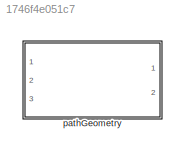
MODEL slx_1746f4e051c7
KIND library
CONFIG AbsTol = auto
CONFIG EnableMultiTasking = off
CONFIG FixedStep = auto
CONFIG MaxStep = auto
CONFIG MinStep = auto
CONFIG RelTol = 1e-3
CONFIG SampleTimeConstraint = Unconstrained
CONFIG Solver = VariableStepAuto
CONFIG SolverName = VariableStepAuto
CONFIG StartTime = 0.0
CONFIG StopTime = 10.0
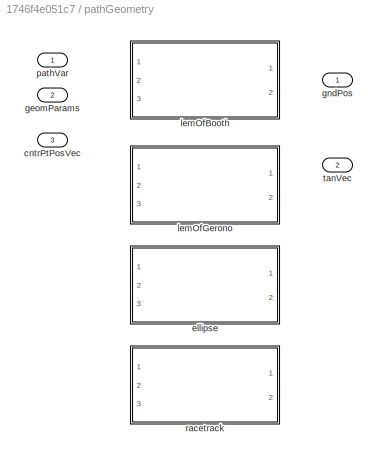
BLOCK [SubSystem] pathGeometry
  InitFcn = initializeVariantsFromBlock(gcb)
  LoadFcn = initializeVariantsFromBlock(gcb)
  Ports = [3, 2]
  RequestExecContextInheritance = off
  StartFcn = initializeVariantsFromBlock(gcb)
  Variant = on
BLOCK [Inport] pathGeometry/cntrPtPosVec
  IconDisplay = Port number
  Port = 3
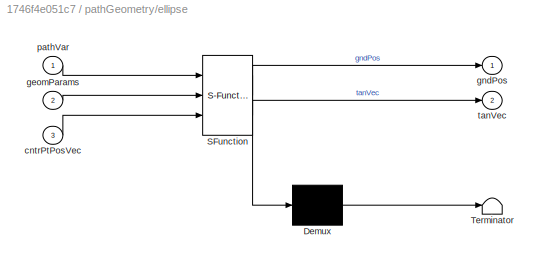
BLOCK [SubSystem] pathGeometry/ellipse
  ErrorFcn = Stateflow.Translate.translate
  PermitHierarchicalResolution = ExplicitOnly
  Ports = [3, 2]
  RequestExecContextInheritance = off
  SFBlockType = MATLAB Function
  TreatAsAtomicUnit = on
  VariantControl = VSS_pathGeometry_ellipse
BLOCK [Demux] pathGeometry/ellipse/ Demux 
  Outputs = 1
  Ports = [1, 1]
BLOCK [S-Function] pathGeometry/ellipse/ SFunction 
  EnableBusSupport = off
  FunctionName = sf_sfun
  PortCounts = [3 3]
  Ports = [3, 3]
  SFcnIsStateOwnerBlock = off
  SFunctionDeploymentMode = off
  Tag = Stateflow S-Function pathGeometry_ul 3
BLOCK [Terminator] pathGeometry/ellipse/ Terminator 
BLOCK [Inport] pathGeometry/ellipse/cntrPtPosVec
  IconDisplay = Port number
  Port = 3
BLOCK [Inport] pathGeometry/ellipse/geomParams
  IconDisplay = Port number
  Port = 2
BLOCK [Outport] pathGeometry/ellipse/gndPos
  IconDisplay = Port number
BLOCK [Inport] pathGeometry/ellipse/pathVar
  IconDisplay = Port number
BLOCK [Outport] pathGeometry/ellipse/tanVec
  IconDisplay = Port number
  Port = 2
BLOCK [Inport] pathGeometry/geomParams
  IconDisplay = Port number
  Port = 2
BLOCK [Outport] pathGeometry/gndPos
  IconDisplay = Port number
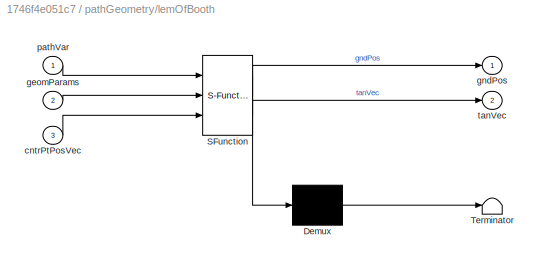
BLOCK [SubSystem] pathGeometry/lemOfBooth
  ErrorFcn = Stateflow.Translate.translate
  PermitHierarchicalResolution = ExplicitOnly
  Ports = [3, 2]
  RequestExecContextInheritance = off
  SFBlockType = MATLAB Function
  TreatAsAtomicUnit = on
  VariantControl = VSS_pathGeometry_lemOfBooth
BLOCK [Demux] pathGeometry/lemOfBooth/ Demux 
  Outputs = 1
  Ports = [1, 1]
BLOCK [S-Function] pathGeometry/lemOfBooth/ SFunction 
  EnableBusSupport = off
  FunctionName = sf_sfun
  PortCounts = [3 3]
  Ports = [3, 3]
  SFcnIsStateOwnerBlock = off
  SFunctionDeploymentMode = off
  Tag = Stateflow S-Function pathGeometry_ul 2
BLOCK [Terminator] pathGeometry/lemOfBooth/ Terminator 
BLOCK [Inport] pathGeometry/lemOfBooth/cntrPtPosVec
  IconDisplay = Port number
  Port = 3
BLOCK [Inport] pathGeometry/lemOfBooth/geomParams
  IconDisplay = Port number
  Port = 2
BLOCK [Outport] pathGeometry/lemOfBooth/gndPos
  IconDisplay = Port number
BLOCK [Inport] pathGeometry/lemOfBooth/pathVar
  IconDisplay = Port number
BLOCK [Outport] pathGeometry/lemOfBooth/tanVec
  IconDisplay = Port number
  Port = 2
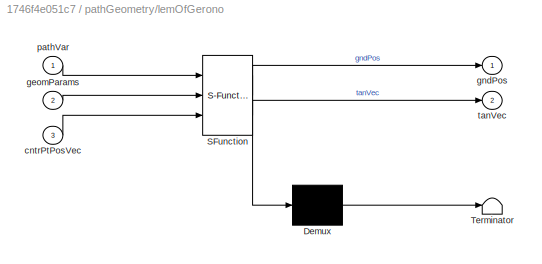
BLOCK [SubSystem] pathGeometry/lemOfGerono
  ErrorFcn = Stateflow.Translate.translate
  PermitHierarchicalResolution = ExplicitOnly
  Ports = [3, 2]
  RequestExecContextInheritance = off
  SFBlockType = MATLAB Function
  TreatAsAtomicUnit = on
  VariantControl = VSS_pathGeometry_lemOfGerono
BLOCK [Demux] pathGeometry/lemOfGerono/ Demux 
  Outputs = 1
  Ports = [1, 1]
BLOCK [S-Function] pathGeometry/lemOfGerono/ SFunction 
  EnableBusSupport = off
  FunctionName = sf_sfun
  PortCounts = [3 3]
  Ports = [3, 3]
  SFcnIsStateOwnerBlock = off
  SFunctionDeploymentMode = off
  Tag = Stateflow S-Function pathGeometry_ul 1
BLOCK [Terminator] pathGeometry/lemOfGerono/ Terminator 
BLOCK [Inport] pathGeometry/lemOfGerono/cntrPtPosVec
  IconDisplay = Port number
  Port = 3
BLOCK [Inport] pathGeometry/lemOfGerono/geomParams
  IconDisplay = Port number
  Port = 2
BLOCK [Outport] pathGeometry/lemOfGerono/gndPos
  IconDisplay = Port number
BLOCK [Inport] pathGeometry/lemOfGerono/pathVar
  IconDisplay = Port number
BLOCK [Outport] pathGeometry/lemOfGerono/tanVec
  IconDisplay = Port number
  Port = 2
BLOCK [Inport] pathGeometry/pathVar
  IconDisplay = Port number
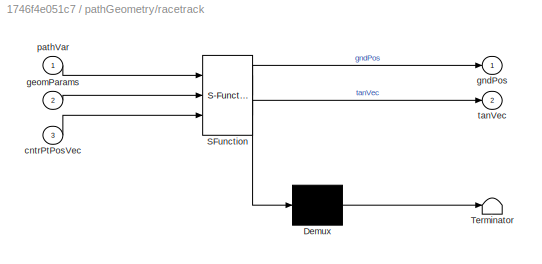
BLOCK [SubSystem] pathGeometry/racetrack
  ErrorFcn = Stateflow.Translate.translate
  PermitHierarchicalResolution = ExplicitOnly
  Ports = [3, 2]
  RequestExecContextInheritance = off
  SFBlockType = MATLAB Function
  TreatAsAtomicUnit = on
  VariantControl = VSS_pathGeometry_racetrack
BLOCK [Demux] pathGeometry/racetrack/ Demux 
  Outputs = 1
  Ports = [1, 1]
BLOCK [S-Function] pathGeometry/racetrack/ SFunction 
  EnableBusSupport = off
  FunctionName = sf_sfun
  PortCounts = [3 3]
  Ports = [3, 3]
  SFcnIsStateOwnerBlock = off
  SFunctionDeploymentMode = off
  Tag = Stateflow S-Function pathGeometry_ul 4
BLOCK [Terminator] pathGeometry/racetrack/ Terminator 
BLOCK [Inport] pathGeometry/racetrack/cntrPtPosVec
  IconDisplay = Port number
  Port = 3
BLOCK [Inport] pathGeometry/racetrack/geomParams
  IconDisplay = Port number
  Port = 2
BLOCK [Outport] pathGeometry/racetrack/gndPos
  IconDisplay = Port number
BLOCK [Inport] pathGeometry/racetrack/pathVar
  IconDisplay = Port number
BLOCK [Outport] pathGeometry/racetrack/tanVec
  IconDisplay = Port number
  Port = 2
BLOCK [Outport] pathGeometry/tanVec
  IconDisplay = Port number
  Port = 2
CHART pathGeometry/lemOfGerono states=1 transitions=1
  STATE_LABEL 'eML_blk_kernel()'
  STATE_LABEL 'SCRIPT:\nfunction [gndPos,tanVec] = fcn(pathVar,geomParams,cntrPtPosVec)\n[gndPos,tanVec] = lemOfGerono(pathVar,geomParams,cntrPtPosVec);\n\n'
CHART pathGeometry/lemOfBooth states=1 transitions=1
  STATE_LABEL 'eML_blk_kernel()'
  STATE_LABEL 'SCRIPT:\nfunction [gndPos,tanVec] = fcn(pathVar,geomParams,cntrPtPosVec)\n[gndPos,tanVec] = lemOfBooth(pathVar,geomParams,cntrPtPosVec);\n\n'
CHART pathGeometry/ellipse states=1 transitions=1
  STATE_LABEL 'eML_blk_kernel()'
  STATE_LABEL 'SCRIPT:\nfunction [gndPos,tanVec] = fcn(pathVar,geomParams,cntrPtPosVec)\n[gndPos,tanVec] = ellipse(pathVar,geomParams,cntrPtPosVec);\n\n'
CHART pathGeometry/racetrack states=1 transitions=1
  STATE_LABEL 'eML_blk_kernel()'
  STATE_LABEL 'SCRIPT:\nfunction [gndPos,tanVec] = fcn(pathVar,geomParams,cntrPtPosVec)\n[gndPos,tanVec] = racetrack(pathVar,geomParams,cntrPtPosVec);\n\n'
